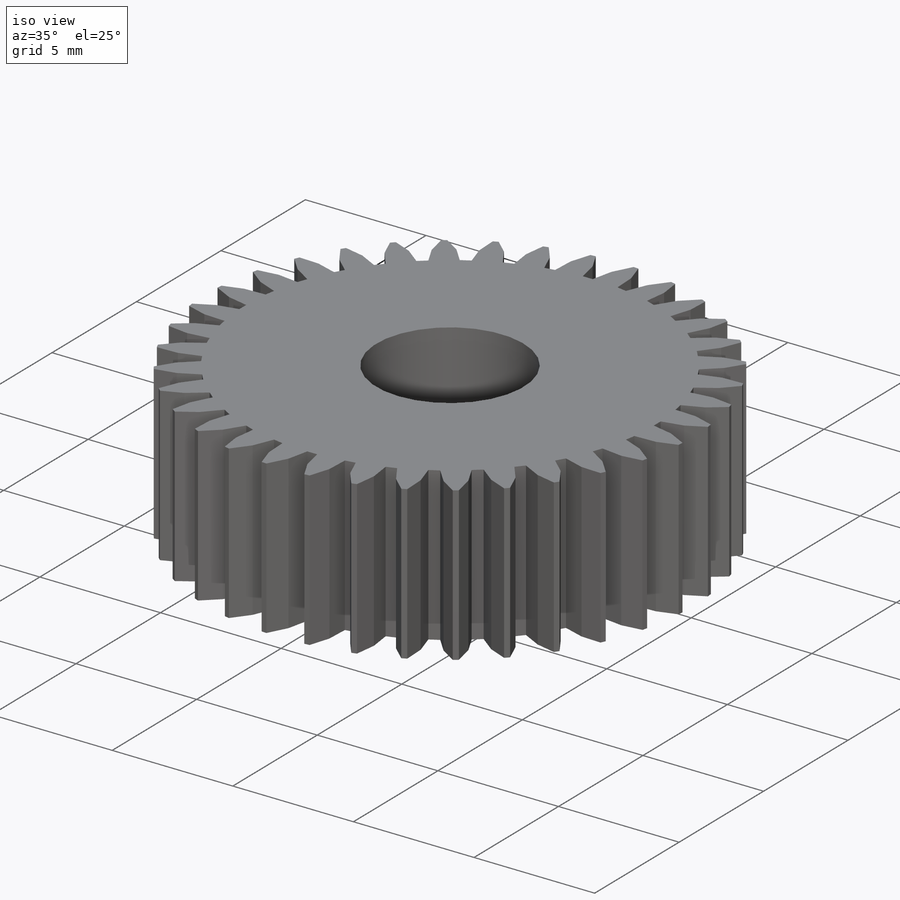
[diagram: iso view]
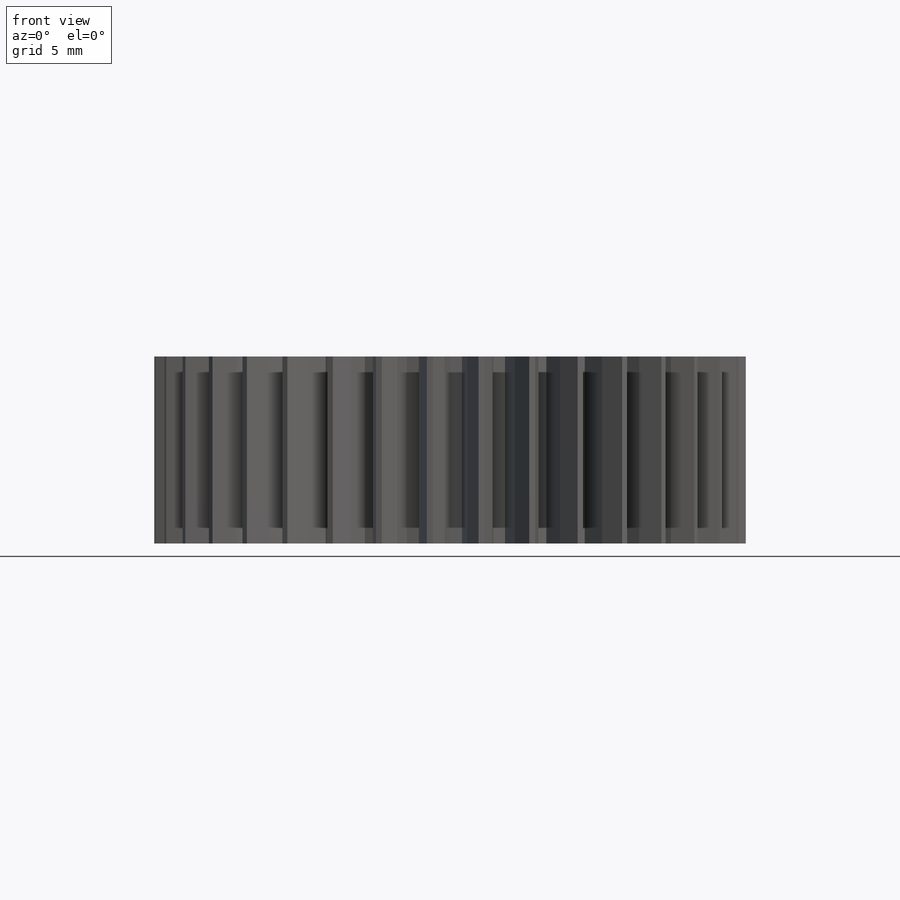
[diagram: front view]
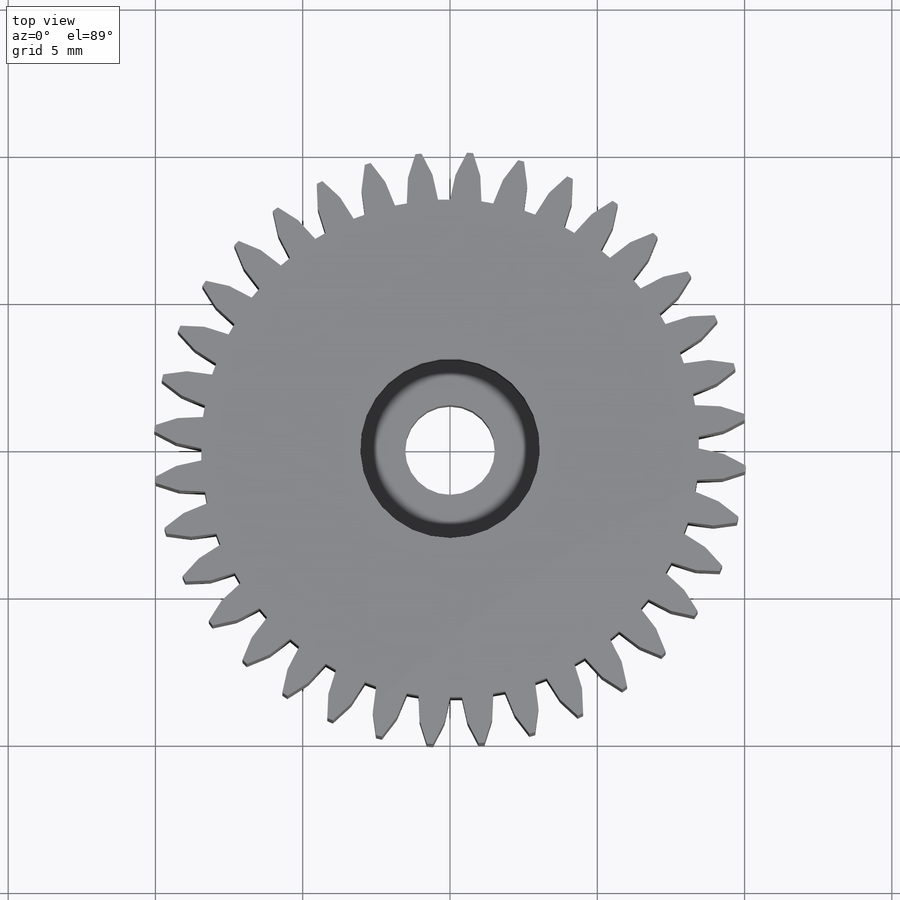
[diagram: top view]
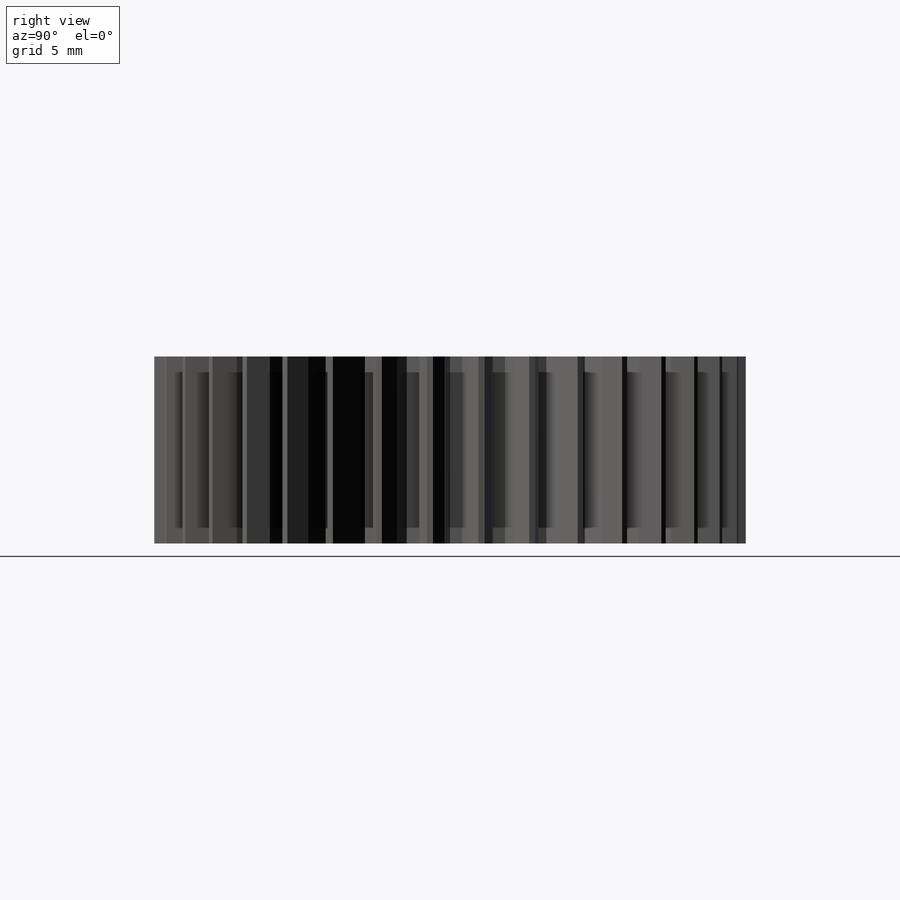
[diagram: right view]
SOLIDWORKS PART (.sldprt)
format: sldprt  version: not decoded by parser v0  size: 665,600 bytes
history: native  units: mm
features: sketch x6, cut_extrude x3, material x1, extrude x1, pattern_circular x1 (+12 scaffold rows collapsed)
feature tree (24):
  scaffold x12  (default folders/planes/origin — collapsed)
  material  "Material <not specified>"
  sketch  "Sketch1"  dims[D1=20.1168mm]
  extrude  "Boss-Extrude1"  Depth=6.35mm
  sketch  "Sketch2"  dims[D1=3.048mm]
  cut_extrude  "Cut-Extrude1"  [1 undecoded]
  sketch  "Sketch3"  dims[D1=6.096mm]
  cut_extrude  "Cut-Extrude2"  Depth=3.048mm
  sketch  "Sketch4"  dims[c1.D1=110.0deg c2.D1=~0.264583mm c3.D1=70.0deg c4.D1=~0.870137mm c5.D1=110.0deg c5.D2=~0.919141mm c6.D2=110.0deg c6.D1=~0.861035mm c7.D1=130.0deg c7.D2=~0.194142mm c8.D2=70.0deg c8.D3=~0.529167mm c9.D3=130.0deg c9.D1=~0.529167mm c10.D1=75.0deg c10.D2=~0.529167mm c11.D2=75.0deg c11.D3=~0.916294mm c12.D3=125.0deg c12.D4=~0.529167mm c13.D4=125.0deg c13.D1=~0.192861mm c14.D1=70.0deg c14.D2=~1.985479mm c15.D2=70.0deg c15.D3=~0.893032mm c16.D3=165.0deg c16.D4=~0.87649mm c17.D4=165.0deg]
  cut_extrude  "Cut-Extrude3"  [1 undecoded]
  pattern_circular  "CirPattern1"  Count=36 Angle=360deg
  sketch  "Pitch Dia"  dims[D1=19.05mm]
  sketch  "Angle Indicator"
decode coverage: 8 of 11 modeling features carry decoded parameters
note: ~ marks probable driven/reference dimensions
note: 2 parameter values undecoded
note: suppression state not decoded; provenance and decode notes live in map.json
